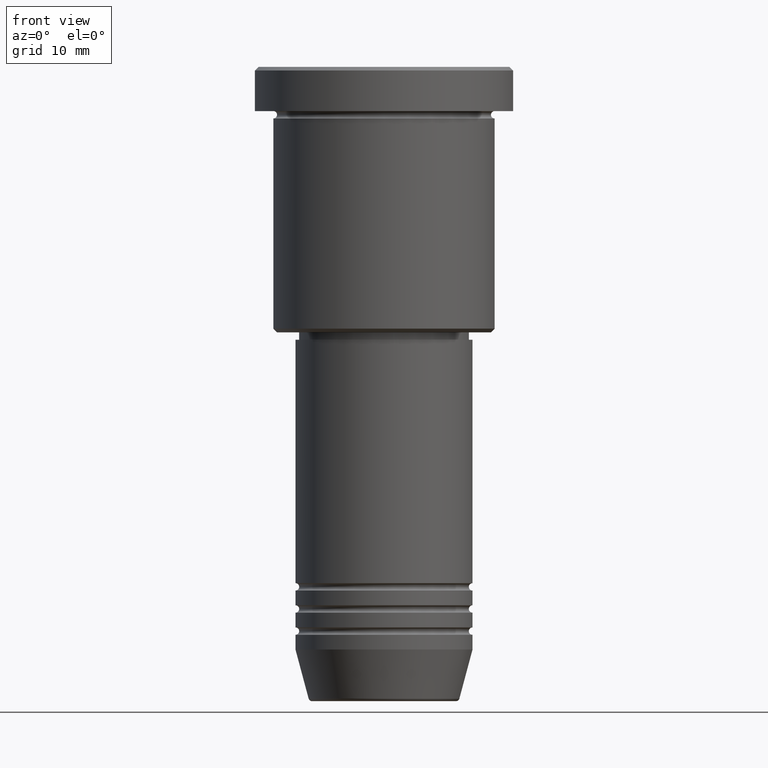
[diagram: clean part render]
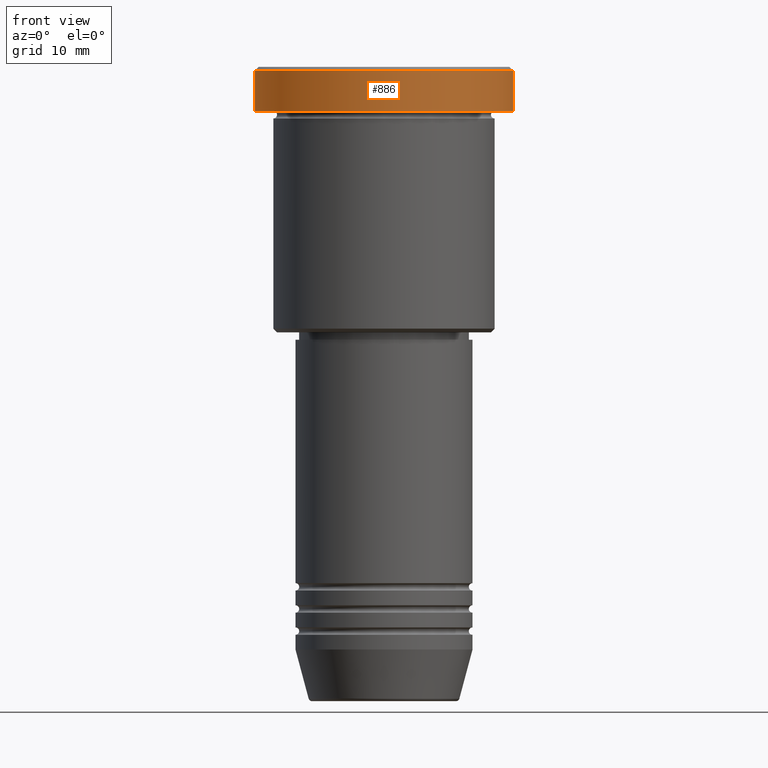
[diagram: same view with one face highlighted and labeled with its STEP entity id]
A machine part, front view. The second image highlights one B-rep face of the part: STEP entity #886.
In plain terms, the highlighted cylindrical surface (partial cylindrical patch) has radius 17.5 mm, axis along (-0, -0, 1).
Its self-contained STEP definition (entity closure, byte-faithful):
#8 = DIRECTION ( 'NONE',  ( 1.000000000000000000, 0.000000000000000000, 0.000000000000000000 ) ) ;
#31 = VECTOR ( 'NONE', #926, 1000.000000000000000 ) ;
#132 = DIRECTION ( 'NONE',  ( 0.000000000000000000, 0.000000000000000000, -1.000000000000000000 ) ) ;
#327 = CARTESIAN_POINT ( 'NONE',  ( 0.000000000000000000, 0.000000000000000000, 0.000000000000000000 ) ) ;
#340 = CIRCLE ( 'NONE', #876, 17.50000000000000000 ) ;
#341 = FACE_OUTER_BOUND ( 'NONE', #598, .T. ) ;
#348 = VERTEX_POINT ( 'NONE', #1032 ) ;
#366 = LINE ( 'NONE', #544, #1049 ) ;
#374 = CARTESIAN_POINT ( 'NONE',  ( -17.50000000000000000, 2.143131898507868248E-15, -0.4999999999999864553 ) ) ;
#381 = VERTEX_POINT ( 'NONE', #628 ) ;
#399 = EDGE_CURVE ( 'NONE', #613, #348, #985, .T. ) ;
#411 = DIRECTION ( 'NONE',  ( 1.000000000000000000, 0.000000000000000000, 0.000000000000000000 ) ) ;
#423 = EDGE_CURVE ( 'NONE', #348, #381, #913, .T. ) ;
#501 = CYLINDRICAL_SURFACE ( 'NONE', #574, 17.50000000000000000 ) ;
#530 = AXIS2_PLACEMENT_3D ( 'NONE', #659, #1021, #569 ) ;
#544 = CARTESIAN_POINT ( 'NONE',  ( -17.50000000000000000, 2.143131898507868248E-15, 0.000000000000000000 ) ) ;
#567 = CARTESIAN_POINT ( 'NONE',  ( 0.000000000000000000, 0.000000000000000000, -0.4999999999999864553 ) ) ;
#569 = DIRECTION ( 'NONE',  ( 1.000000000000000000, 0.000000000000000000, 0.000000000000000000 ) ) ;
#574 = AXIS2_PLACEMENT_3D ( 'NONE', #327, #869, #411 ) ;
#598 = EDGE_LOOP ( 'NONE', ( #633, #1061, #898, #605 ) ) ;
#605 = ORIENTED_EDGE ( 'NONE', *, *, #680, .T. ) ;
#613 = VERTEX_POINT ( 'NONE', #1173 ) ;
#628 = CARTESIAN_POINT ( 'NONE',  ( 17.50000000000000000, 0.000000000000000000, -0.4999999999999864553 ) ) ;
#633 = ORIENTED_EDGE ( 'NONE', *, *, #635, .F. ) ;
#635 = EDGE_CURVE ( 'NONE', #613, #664, #366, .T. ) ;
#659 = CARTESIAN_POINT ( 'NONE',  ( 0.000000000000000000, 0.000000000000000000, -5.999999999999995559 ) ) ;
#664 = VERTEX_POINT ( 'NONE', #374 ) ;
#680 = EDGE_CURVE ( 'NONE', #381, #664, #340, .T. ) ;
#737 = CARTESIAN_POINT ( 'NONE',  ( 17.50000000000000000, 0.000000000000000000, 0.000000000000000000 ) ) ;
#869 = DIRECTION ( 'NONE',  ( -0.000000000000000000, -0.000000000000000000, 1.000000000000000000 ) ) ;
#876 = AXIS2_PLACEMENT_3D ( 'NONE', #567, #132, #8 ) ;
#886 = ADVANCED_FACE ( 'NONE', ( #341 ), #501, .T. ) ;
#898 = ORIENTED_EDGE ( 'NONE', *, *, #423, .T. ) ;
#913 = LINE ( 'NONE', #737, #31 ) ;
#926 = DIRECTION ( 'NONE',  ( -0.000000000000000000, -0.000000000000000000, 1.000000000000000000 ) ) ;
#985 = CIRCLE ( 'NONE', #530, 17.50000000000000000 ) ;
#1002 = DIRECTION ( 'NONE',  ( -0.000000000000000000, -0.000000000000000000, 1.000000000000000000 ) ) ;
#1021 = DIRECTION ( 'NONE',  ( -0.000000000000000000, -0.000000000000000000, 1.000000000000000000 ) ) ;
#1032 = CARTESIAN_POINT ( 'NONE',  ( 17.50000000000000000, 0.000000000000000000, -5.999999999999995559 ) ) ;
#1049 = VECTOR ( 'NONE', #1002, 1000.000000000000000 ) ;
#1061 = ORIENTED_EDGE ( 'NONE', *, *, #399, .T. ) ;
#1173 = CARTESIAN_POINT ( 'NONE',  ( -17.50000000000000000, 2.143131898507868248E-15, -5.999999999999995559 ) ) ;